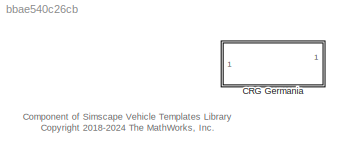
MODEL slx_bbae540c26cb
KIND library
CONFIG AbsTol = auto
CONFIG EnableMultiTasking = off
CONFIG FixedStep = auto
CONFIG MaxStep = auto
CONFIG MinStep = auto
CONFIG RelTol = 1e-3
CONFIG SampleTimeConstraint = Unconstrained
CONFIG SolverName = VariableStepAuto
CONFIG StartTime = 0.0
CONFIG StopTime = 10.0
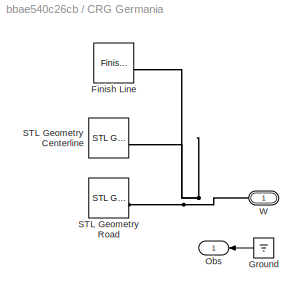
BLOCK [SubSystem] CRG Germania
BLOCK [Reference] CRG Germania/Finish Line  REF=Scene_Utilities/Finish Line
  SourceBlock = Scene_Utilities/Finish Line
BLOCK [Ground] CRG Germania/Ground
  NameLocation = top
BLOCK [Outport] CRG Germania/Obs
  VectorParamsAs1DForOutWhenUnconnected = off
BLOCK [Reference] CRG Germania/STL Geometry Centerline  REF=Scene_Utilities/STL Geometry
  SourceBlock = Scene_Utilities/STL Geometry
BLOCK [Reference] CRG Germania/STL Geometry Road  REF=Scene_Utilities/STL Geometry
  SourceBlock = Scene_Utilities/STL Geometry
BLOCK [PMIOPort] CRG Germania/W
  NameLocation = top
  Side = Left
ANNOTATION (root): Component of Simscape Vehicle Templates Library <copyright redacted>
LINE CRG Germania/Ground:1 -> CRG Germania/Obs:1
PNET net1: CRG Germania/Finish Line:LConn1 -- CRG Germania/STL Geometry Centerline:RConn1 -- CRG Germania/STL Geometry Road:RConn1 -- CRG Germania/W:RConn1
note: PNET lines group multi-terminal physical nets as a canonical sorted terminal list (undirected conserving connections); 2-terminal nets keep the pairwise PLINE form
